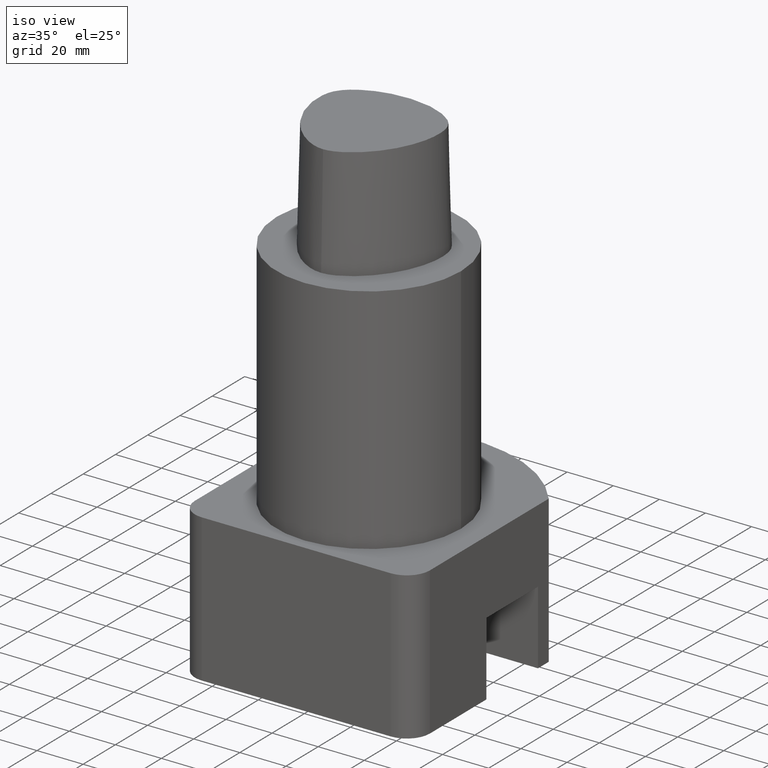
[diagram: clean part render]
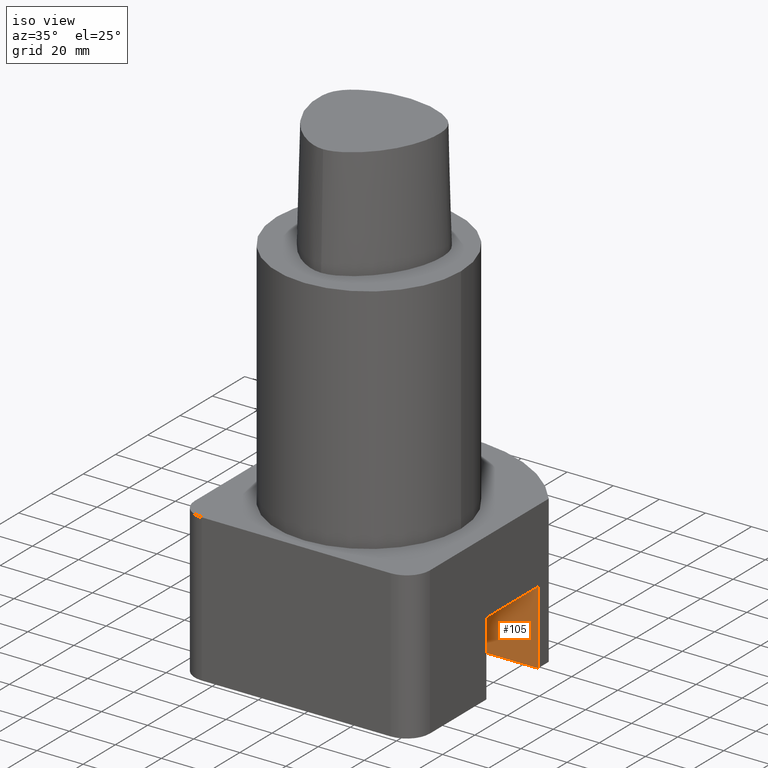
[diagram: same view with one face highlighted and labeled with its STEP entity id]
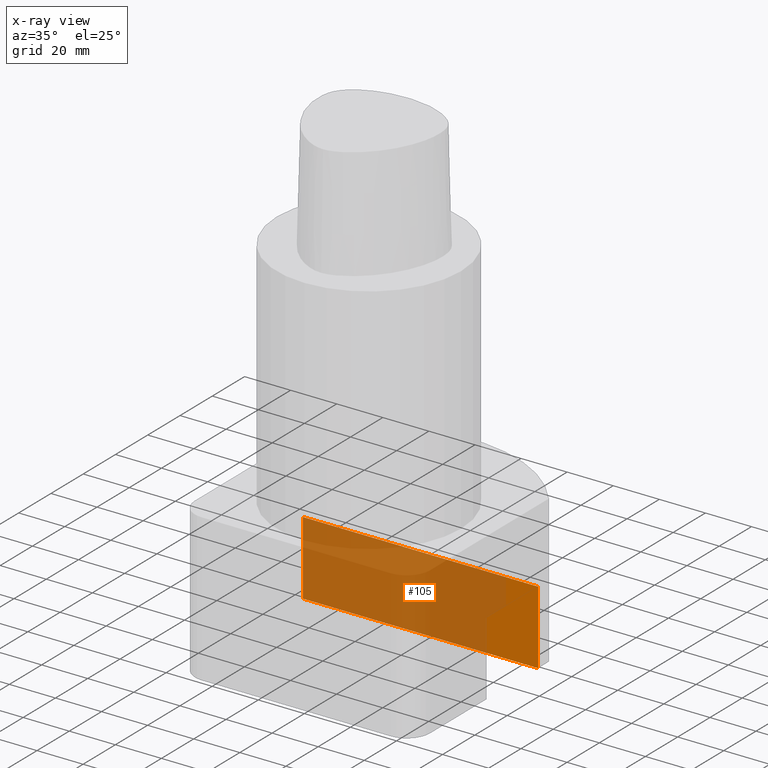
[diagram: x-ray of the same camera — body ghosted, the highlighted face saturated]
A machine part, iso view. The second image highlights one B-rep face of the part: STEP entity #105.
The next image is the same camera in x-ray: the body ghosted, the highlighted face saturated — about 82% of this face is hidden behind the body in this view.
In plain terms, the highlighted planar face has unit normal (-0, 1, -0).
Its self-contained STEP definition (entity closure, byte-faithful):
#80=EDGE_CURVE('240[2]',#226,#227,#228,.T.);
#86=EDGE_CURVE('240[2]',#238,#226,#239,.T.);
#105=ADVANCED_FACE('240[2]',(#265),#266,.F.);
#125=EDGE_CURVE('240[2]',#294,#238,#295,.T.);
#191=EDGE_CURVE('240[2]',#227,#294,#379,.T.);
#226=VERTEX_POINT('',#409);
#227=VERTEX_POINT('',#410);
#228=LINE('',#411,#412);
#238=VERTEX_POINT('',#426);
#239=LINE('',#427,#428);
#265=FACE_OUTER_BOUND('',#513,.T.);
#266=PLANE('',#514);
#294=VERTEX_POINT('',#554);
#295=LINE('',#555,#556);
#379=LINE('',#777,#778);
#409=CARTESIAN_POINT('',(-50.999999916187,32.0,-133.0));
#410=CARTESIAN_POINT('',(50.9999999393456,32.0,-133.0));
#411=CARTESIAN_POINT('',(4.58648328269132E-014,32.0,-133.0));
#412=VECTOR('',#1195,1.0);
#426=CARTESIAN_POINT('',(-50.999999916187,32.0,-165.0));
#427=CARTESIAN_POINT('',(-50.999999916187,32.0,-212.0));
#428=VECTOR('',#1200,1.0);
#513=EDGE_LOOP('',(#1227,#1228,#1229,#1230));
#514=AXIS2_PLACEMENT_3D('',#1231,#1232,#1233);
#554=CARTESIAN_POINT('',(50.9999999393456,32.0,-165.0));
#555=CARTESIAN_POINT('',(24.0355339117224,32.0,-165.0));
#556=VECTOR('',#1262,1.0);
#777=CARTESIAN_POINT('',(50.9999999393456,32.0,-212.0));
#778=VECTOR('',#1364,1.0);
#1195=DIRECTION('',(1.0,-1.83697019872103E-016,1.22464679914735E-016));
#1200=DIRECTION('',(-1.22464679914735E-016,6.12323399573677E-017,1.0));
#1227=ORIENTED_EDGE('',*,*,#125,.F.);
#1228=ORIENTED_EDGE('',*,*,#191,.F.);
#1229=ORIENTED_EDGE('',*,*,#80,.F.);
#1230=ORIENTED_EDGE('',*,*,#86,.F.);
#1231=CARTESIAN_POINT('',(1.15793108545729E-008,32.0,-259.0));
#1232=DIRECTION('',(-1.12481983699639E-032,1.0,-6.12323399573677E-017));
#1233=DIRECTION('',(1.0,0.0,-1.83697019872103E-016));
#1262=DIRECTION('',(-1.0,1.83697019872103E-016,-1.22464679914735E-016));
#1364=DIRECTION('',(1.22464679914735E-016,-6.12323399573677E-017,-1.0));